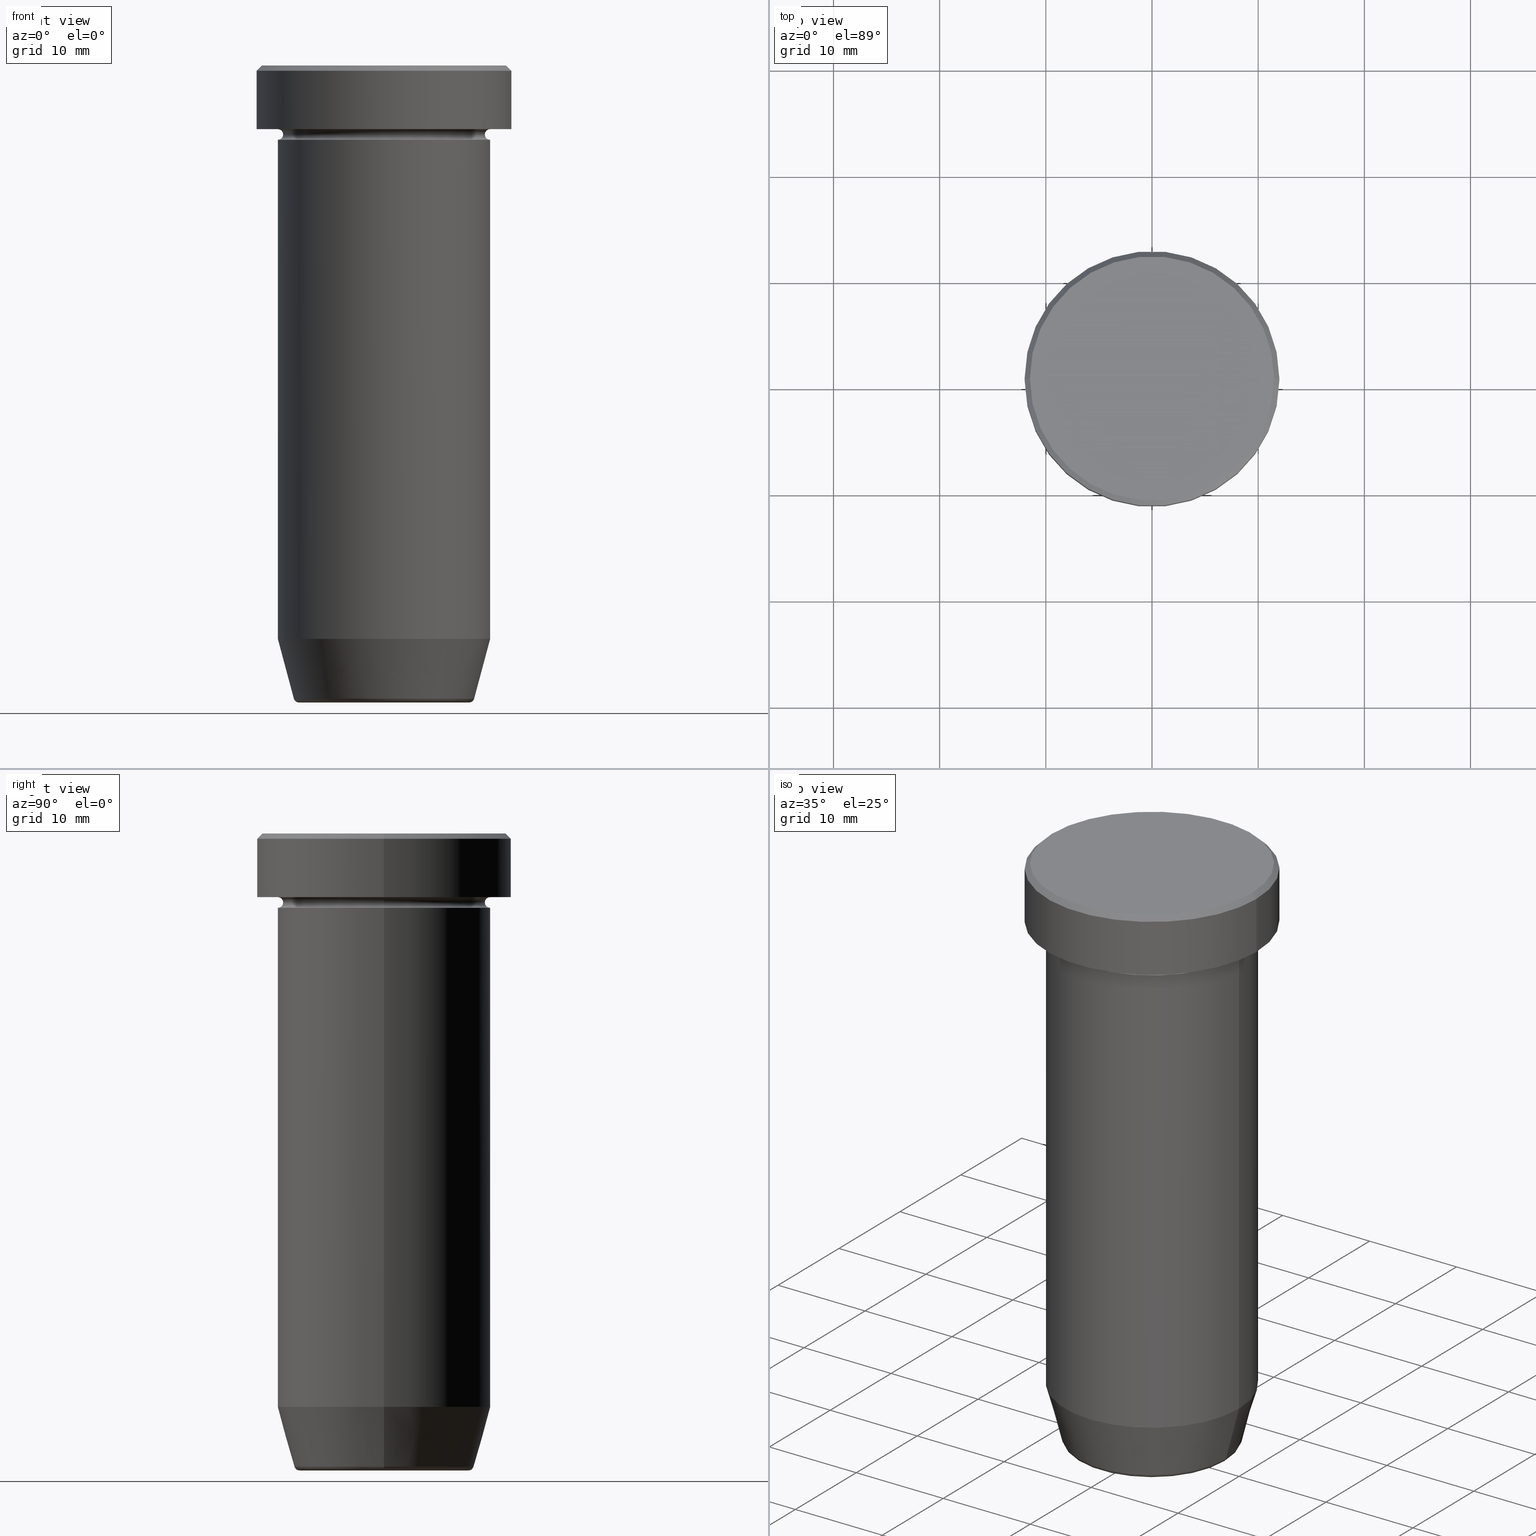
[diagram: canonical four-view strip — front | top / right | iso, engineering-drawing reading convention]
A machine part, canonical four-view strip (front | top / right | iso — engineering-drawing reading convention). The complete STEP part file that produces these views, byte-faithful:
ISO-10303-21;
HEADER;
FILE_DESCRIPTION (( 'STEP AP203' ),
    '1' );
FILE_NAME ('5390.STEP',
    '2024-01-02T22:00:16',
    ( '' ),
    ( '' ),
    'SwSTEP 2.0',
    'SolidWorks 2019',
    '' );
FILE_SCHEMA (( 'CONFIG_CONTROL_DESIGN' ));
ENDSEC;

DATA;
#1 = DIRECTION ( 'NONE',  ( -1.000000000000000000, 0.000000000000000000, 0.000000000000000000 ) ) ;
#2 = ORIENTED_EDGE ( 'NONE', *, *, #143, .F. ) ;
#3 = AXIS2_PLACEMENT_3D ( 'NONE', #459, #583, #133 ) ;
#4 = CLOSED_SHELL ( 'NONE', ( #222, #376, #565, #573, #530, #32, #277, #11 ) ) ;
#5 = DIRECTION ( 'NONE',  ( -1.224646799147353207E-16, 1.000000000000000000, 0.000000000000000000 ) ) ;
#6 = MECHANICAL_CONTEXT ( 'NONE', #35, 'mechanical' ) ;
#7 = CARTESIAN_POINT ( 'NONE',  ( -10.00000000000000000, 1.224646799147353256E-15, 0.000000000000000000 ) ) ;
#8 = ORIENTED_EDGE ( 'NONE', *, *, #243, .T. ) ;
#9 = DIRECTION ( 'NONE',  ( -0.000000000000000000, -0.000000000000000000, 1.000000000000000000 ) ) ;
#10 = EDGE_LOOP ( 'NONE', ( #394, #511, #56, #103 ) ) ;
#11 = ADVANCED_FACE ( 'NONE', ( #245 ), #89, .T. ) ;
#12 = AXIS2_PLACEMENT_3D ( 'NONE', #329, #5, #366 ) ;
#13 = ORIENTED_EDGE ( 'NONE', *, *, #108, .F. ) ;
#14 = CC_DESIGN_PERSON_AND_ORGANIZATION_ASSIGNMENT ( #465, #20, ( #456 ) ) ;
#15 = CIRCLE ( 'NONE', #579, 8.491604264568310967 ) ;
#16 = CIRCLE ( 'NONE', #301, 12.00000000000000000 ) ;
#17 = DIRECTION ( 'NONE',  ( 0.000000000000000000, -1.000000000000000000, 0.000000000000000000 ) ) ;
#18 =( NAMED_UNIT ( * ) PLANE_ANGLE_UNIT ( ) SI_UNIT ( $, .RADIAN. ) );
#19 = FACE_OUTER_BOUND ( 'NONE', #434, .T. ) ;
#20 = PERSON_AND_ORGANIZATION_ROLE ( 'design_supplier' ) ;
#21 = ORIENTED_EDGE ( 'NONE', *, *, #281, .T. ) ;
#22 = VECTOR ( 'NONE', #122, 1000.000000000000000 ) ;
#23 = ORIENTED_EDGE ( 'NONE', *, *, #138, .T. ) ;
#24 = DIRECTION ( 'NONE',  ( -0.000000000000000000, -0.000000000000000000, 1.000000000000000000 ) ) ;
#25 = ORIENTED_EDGE ( 'NONE', *, *, #199, .T. ) ;
#26 = CARTESIAN_POINT ( 'NONE',  ( -9.500000000000000000, 1.194030629168669469E-15, -6.499999999999999112 ) ) ;
#27 = EDGE_LOOP ( 'NONE', ( #332, #39 ) ) ;
#28 = ORIENTED_EDGE ( 'NONE', *, *, #41, .T. ) ;
#29 = VERTEX_POINT ( 'NONE', #214 ) ;
#30 = AXIS2_PLACEMENT_3D ( 'NONE', #542, #306, #589 ) ;
#31 = CONICAL_SURFACE ( 'NONE', #346, 11.49999999999999467, 0.7853981633974447263 ) ;
#32 = ADVANCED_FACE ( 'NONE', ( #166 ), #313, .T. ) ;
#33 = ORIENTED_EDGE ( 'NONE', *, *, #199, .F. ) ;
#34 = PLANE ( 'NONE',  #385 ) ;
#35 = APPLICATION_CONTEXT ( 'configuration controlled 3d designs of mechanical parts and assemblies' ) ;
#36 = CC_DESIGN_APPROVAL ( #435, ( #456 ) ) ;
#37 = ADVANCED_FACE ( 'NONE', ( #121 ), #72, .F. ) ;
#38 = FACE_BOUND ( 'NONE', #218, .T. ) ;
#39 = ORIENTED_EDGE ( 'NONE', *, *, #146, .T. ) ;
#40 = CARTESIAN_POINT ( 'NONE',  ( 0.000000000000000000, 10.00000000000000000, -15.00000000000000000 ) ) ;
#41 = EDGE_CURVE ( 'NONE', #274, #29, #165, .T. ) ;
#42 = CYLINDRICAL_SURFACE ( 'NONE', #117, 12.00000000000000000 ) ;
#43 = CARTESIAN_POINT ( 'NONE',  ( 0.000000000000000000, -3.469446951953614189E-15, -15.00000000000000000 ) ) ;
#44 = CIRCLE ( 'NONE', #217, 12.00000000000000000 ) ;
#45 = AXIS2_PLACEMENT_3D ( 'NONE', #84, #494, #249 ) ;
#46 = ORIENTED_EDGE ( 'NONE', *, *, #228, .T. ) ;
#47 = AXIS2_PLACEMENT_3D ( 'NONE', #49, #128, #453 ) ;
#48 = DIRECTION ( 'NONE',  ( 0.000000000000000000, -1.000000000000000000, 0.000000000000000000 ) ) ;
#49 = CARTESIAN_POINT ( 'NONE',  ( -10.00000000000000000, 1.224646799147353256E-15, -6.499999999999999112 ) ) ;
#50 = ORIENTED_EDGE ( 'NONE', *, *, #300, .F. ) ;
#51 = ORIENTED_EDGE ( 'NONE', *, *, #403, .F. ) ;
#52 = DIRECTION ( 'NONE',  ( -0.000000000000000000, -0.000000000000000000, 1.000000000000000000 ) ) ;
#53 = CARTESIAN_POINT ( 'NONE',  ( -8.008641351423779753, 1.010348648938493172E-15, -60.00000000000000000 ) ) ;
#54 = CARTESIAN_POINT ( 'NONE',  ( 0.000000000000000000, 0.000000000000000000, -6.999999999999999112 ) ) ;
#55 = ORIENTED_EDGE ( 'NONE', *, *, #83, .F. ) ;
#56 = ORIENTED_EDGE ( 'NONE', *, *, #64, .T. ) ;
#57 = DIRECTION ( 'NONE',  ( 1.000000000000000000, 0.000000000000000000, 0.000000000000000000 ) ) ;
#58 = CIRCLE ( 'NONE', #283, 9.999999999999998224 ) ;
#59 = CARTESIAN_POINT ( 'NONE',  ( 10.00000000000000000, 0.000000000000000000, -15.00000000000000000 ) ) ;
#60 = TOROIDAL_SURFACE ( 'NONE', #132, 8.008641351423779753, 0.5000000000000000000 ) ;
#61 = DIRECTION ( 'NONE',  ( 1.000000000000000000, 0.000000000000000000, 0.000000000000000000 ) ) ;
#62 = ORIENTED_EDGE ( 'NONE', *, *, #228, .F. ) ;
#63 = SECURITY_CLASSIFICATION_LEVEL ( 'unclassified' ) ;
#64 = EDGE_CURVE ( 'NONE', #482, #500, #343, .T. ) ;
#65 = DIRECTION ( 'NONE',  ( -0.000000000000000000, -1.000000000000000000, -0.000000000000000000 ) ) ;
#66 = DIRECTION ( 'NONE',  ( -0.000000000000000000, -0.000000000000000000, 1.000000000000000000 ) ) ;
#67 = APPROVAL_ROLE ( '' ) ;
#68 = CC_DESIGN_PERSON_AND_ORGANIZATION_ASSIGNMENT ( #356, #280, ( #162 ) ) ;
#69 = CARTESIAN_POINT ( 'NONE',  ( 0.000000000000000000, 0.000000000000000000, -53.99999999999999289 ) ) ;
#70 = AXIS2_PLACEMENT_3D ( 'NONE', #515, #510, #276 ) ;
#71 = PERSON_AND_ORGANIZATION_ROLE ( 'creator' ) ;
#72 = TOROIDAL_SURFACE ( 'NONE', #3, 10.00000000000000000, 0.5000000000000000000 ) ;
#73 = DIRECTION ( 'NONE',  ( 1.000000000000000000, 0.000000000000000000, 0.000000000000000000 ) ) ;
#74 = CC_DESIGN_APPROVAL ( #547, ( #519 ) ) ;
#75 = DIRECTION ( 'NONE',  ( 0.000000000000000000, 0.000000000000000000, -1.000000000000000000 ) ) ;
#76 = ORIENTED_EDGE ( 'NONE', *, *, #342, .T. ) ;
#77 = CIRCLE ( 'NONE', #156, 10.00000000000000000 ) ;
#78 = FACE_OUTER_BOUND ( 'NONE', #373, .T. ) ;
#79 = EDGE_CURVE ( 'NONE', #134, #29, #194, .T. ) ;
#80 = CC_DESIGN_APPROVAL ( #125, ( #162 ) ) ;
#81 = CARTESIAN_POINT ( 'NONE',  ( 8.392304845413260495, 0.000000000000000000, -60.00000000000000000 ) ) ;
#82 = CARTESIAN_POINT ( 'NONE',  ( 8.491604264568310967, 0.000000000000000000, -59.62940952255125637 ) ) ;
#83 = EDGE_CURVE ( 'NONE', #204, #134, #400, .T. ) ;
#84 = CARTESIAN_POINT ( 'NONE',  ( 0.000000000000000000, 0.000000000000000000, -53.99999999999999289 ) ) ;
#85 = CARTESIAN_POINT ( 'NONE',  ( 0.000000000000000000, 0.000000000000000000, -60.00000000000000000 ) ) ;
#86 = TOROIDAL_SURFACE ( 'NONE', #30, 10.00000000000000000, 0.5000000000000000000 ) ;
#87 = CARTESIAN_POINT ( 'NONE',  ( 0.000000000000000000, 0.000000000000000000, -6.499999999999999112 ) ) ;
#88 = AXIS2_PLACEMENT_3D ( 'NONE', #544, #308, #174 ) ;
#89 = TOROIDAL_SURFACE ( 'NONE', #514, 8.008641351423779753, 0.5000000000000000000 ) ;
#90 = ORIENTED_EDGE ( 'NONE', *, *, #238, .F. ) ;
#91 = ORGANIZATION ( 'NEUR�EN�', 'NEUR�EN�', '' ) ;
#92 = DIRECTION ( 'NONE',  ( 1.000000000000000000, 0.000000000000000000, 0.000000000000000000 ) ) ;
#93 = ORIENTED_EDGE ( 'NONE', *, *, #522, .F. ) ;
#94 = FACE_OUTER_BOUND ( 'NONE', #388, .T. ) ;
#95 = PERSON_AND_ORGANIZATION ( #190, #91 ) ;
#96 = AXIS2_PLACEMENT_3D ( 'NONE', #239, #426, #288 ) ;
#97 = DIRECTION ( 'NONE',  ( 1.000000000000000000, 0.000000000000000000, 0.000000000000000000 ) ) ;
#98 = ORIENTED_EDGE ( 'NONE', *, *, #584, .F. ) ;
#99 = ORIENTED_EDGE ( 'NONE', *, *, #212, .T. ) ;
#100 = DIRECTION ( 'NONE',  ( 1.000000000000000000, 0.000000000000000000, 0.000000000000000000 ) ) ;
#101 = DIRECTION ( 'NONE',  ( 1.000000000000000000, 0.000000000000000000, 0.000000000000000000 ) ) ;
#102 = VERTEX_POINT ( 'NONE', #254 ) ;
#103 = ORIENTED_EDGE ( 'NONE', *, *, #412, .F. ) ;
#104 = EDGE_CURVE ( 'NONE', #289, #560, #15, .T. ) ;
#105 = CIRCLE ( 'NONE', #492, 10.00000000000000000 ) ;
#106 = FACE_OUTER_BOUND ( 'NONE', #595, .T. ) ;
#107 = CALENDAR_DATE ( 2024, 2, 1 ) ;
#108 = EDGE_CURVE ( 'NONE', #274, #278, #395, .T. ) ;
#109 = COORDINATED_UNIVERSAL_TIME_OFFSET ( 1, 0, .AHEAD. ) ;
#110 = EDGE_LOOP ( 'NONE', ( #326, #255, #317, #441 ) ) ;
#111 = APPROVAL_PERSON_ORGANIZATION ( #566, #435, #67 ) ;
#112 = CARTESIAN_POINT ( 'NONE',  ( 0.000000000000000000, 0.000000000000000000, -6.000000000000000000 ) ) ;
#113 = DIRECTION ( 'NONE',  ( -0.000000000000000000, -0.000000000000000000, 1.000000000000000000 ) ) ;
#114 = APPLICATION_CONTEXT ( 'configuration controlled 3d designs of mechanical parts and assemblies' ) ;
#115 = VERTEX_POINT ( 'NONE', #263 ) ;
#116 = ADVANCED_FACE ( 'NONE', ( #38, #398 ), #587, .T. ) ;
#117 = AXIS2_PLACEMENT_3D ( 'NONE', #402, #353, #298 ) ;
#118 = DATE_TIME_ROLE ( 'creation_date' ) ;
#119 = EDGE_LOOP ( 'NONE', ( #282, #233, #559, #303 ) ) ;
#120 = CARTESIAN_POINT ( 'NONE',  ( 0.000000000000000000, 0.000000000000000000, 0.000000000000000000 ) ) ;
#121 = FACE_OUTER_BOUND ( 'NONE', #284, .T. ) ;
#122 = DIRECTION ( 'NONE',  ( -0.000000000000000000, -0.000000000000000000, 1.000000000000000000 ) ) ;
#123 = CIRCLE ( 'NONE', #448, 0.5000000000000004441 ) ;
#124 = ORIENTED_EDGE ( 'NONE', *, *, #403, .T. ) ;
#125 = APPROVAL ( #399, 'NEUR�EN�' ) ;
#126 = CARTESIAN_POINT ( 'NONE',  ( -8.491604264568310967, 1.132284198685156387E-15, -59.62940952255125637 ) ) ;
#127 = DIRECTION ( 'NONE',  ( 1.000000000000000000, 0.000000000000000000, 0.000000000000000000 ) ) ;
#128 = DIRECTION ( 'NONE',  ( 1.224646799147353207E-16, 1.000000000000000000, 0.000000000000000000 ) ) ;
#129 = CIRCLE ( 'NONE', #12, 0.5000000000000004441 ) ;
#130 = EDGE_CURVE ( 'NONE', #338, #204, #533, .T. ) ;
#131 = PERSON_AND_ORGANIZATION_ROLE ( 'design_owner' ) ;
#132 = AXIS2_PLACEMENT_3D ( 'NONE', #562, #113, #154 ) ;
#133 = DIRECTION ( 'NONE',  ( 1.000000000000000000, 0.000000000000000000, 0.000000000000000000 ) ) ;
#134 = VERTEX_POINT ( 'NONE', #171 ) ;
#135 = DIRECTION ( 'NONE',  ( -0.000000000000000000, -0.000000000000000000, 1.000000000000000000 ) ) ;
#136 = CALENDAR_DATE ( 2024, 2, 1 ) ;
#137 = DIRECTION ( 'NONE',  ( -1.000000000000000000, 0.000000000000000000, -0.000000000000000000 ) ) ;
#138 = EDGE_CURVE ( 'NONE', #115, #331, #16, .T. ) ;
#139 = FACE_OUTER_BOUND ( 'NONE', #292, .T. ) ;
#140 = ORIENTED_EDGE ( 'NONE', *, *, #484, .T. ) ;
#141 = AXIS2_PLACEMENT_3D ( 'NONE', #182, #318, #361 ) ;
#142 = DIRECTION ( 'NONE',  ( -0.000000000000000000, -0.000000000000000000, 1.000000000000000000 ) ) ;
#143 = EDGE_CURVE ( 'NONE', #576, #115, #499, .T. ) ;
#144 = DIRECTION ( 'NONE',  ( -0.000000000000000000, -0.000000000000000000, 1.000000000000000000 ) ) ;
#145 = LINE ( 'NONE', #378, #516 ) ;
#146 = EDGE_CURVE ( 'NONE', #180, #508, #351, .T. ) ;
#147 = APPROVAL_STATUS ( 'not_yet_approved' ) ;
#148 = ADVANCED_FACE ( 'NONE', ( #139 ), #42, .T. ) ;
#149 = DIRECTION ( 'NONE',  ( -0.000000000000000000, -0.000000000000000000, 1.000000000000000000 ) ) ;
#150 = CIRCLE ( 'NONE', #70, 8.008641351423779753 ) ;
#151 = AXIS2_PLACEMENT_3D ( 'NONE', #439, #211, #161 ) ;
#152 = ORIENTED_EDGE ( 'NONE', *, *, #484, .F. ) ;
#153 = DIRECTION ( 'NONE',  ( 1.000000000000000000, 0.000000000000000000, 0.000000000000000000 ) ) ;
#154 = DIRECTION ( 'NONE',  ( 1.000000000000000000, 0.000000000000000000, 0.000000000000000000 ) ) ;
#155 = DIRECTION ( 'NONE',  ( 0.000000000000000000, 0.000000000000000000, -1.000000000000000000 ) ) ;
#156 = AXIS2_PLACEMENT_3D ( 'NONE', #232, #420, #327 ) ;
#157 = ORIENTED_EDGE ( 'NONE', *, *, #79, .F. ) ;
#158 = CARTESIAN_POINT ( 'NONE',  ( -10.00000000000000000, 1.224646799147353256E-15, -15.00000000000000000 ) ) ;
#159 = ORIENTED_EDGE ( 'NONE', *, *, #463, .F. ) ;
#160 = ADVANCED_FACE ( 'NONE', ( #167 ), #504, .T. ) ;
#161 = DIRECTION ( 'NONE',  ( 1.000000000000000000, 0.000000000000000000, 0.000000000000000000 ) ) ;
#162 = PRODUCT_DEFINITION ( 'NEZN�M�', '', #456, #582 ) ;
#163 = CC_DESIGN_DATE_AND_TIME_ASSIGNMENT ( #422, #415, ( #519 ) ) ;
#164 = DIRECTION ( 'NONE',  ( 1.000000000000000000, 0.000000000000000000, 0.000000000000000000 ) ) ;
#165 = CIRCLE ( 'NONE', #47, 0.5000000000000004441 ) ;
#166 = FACE_OUTER_BOUND ( 'NONE', #334, .T. ) ;
#167 = FACE_OUTER_BOUND ( 'NONE', #110, .T. ) ;
#168 = CARTESIAN_POINT ( 'NONE',  ( 0.000000000000000000, 0.000000000000000000, -15.00000000000000000 ) ) ;
#169 = APPROVAL_ROLE ( '' ) ;
#170 = AXIS2_PLACEMENT_3D ( 'NONE', #564, #319, #512 ) ;
#171 = CARTESIAN_POINT ( 'NONE',  ( 10.00000000000000000, 0.000000000000000000, -6.999999999999999112 ) ) ;
#172 = FACE_OUTER_BOUND ( 'NONE', #410, .T. ) ;
#173 = APPROVAL_DATE_TIME ( #590, #125 ) ;
#174 = DIRECTION ( 'NONE',  ( 1.000000000000000000, 0.000000000000000000, 0.000000000000000000 ) ) ;
#175 = DIRECTION ( 'NONE',  ( 1.000000000000000000, 0.000000000000000000, 0.000000000000000000 ) ) ;
#176 = EDGE_CURVE ( 'NONE', #102, #224, #285, .T. ) ;
#177 = PERSON_AND_ORGANIZATION ( #190, #91 ) ;
#178 = CARTESIAN_POINT ( 'NONE',  ( 9.999999999999998224, 0.000000000000000000, 0.000000000000000000 ) ) ;
#179 = EDGE_LOOP ( 'NONE', ( #336, #159, #140, #580 ) ) ;
#180 = VERTEX_POINT ( 'NONE', #266 ) ;
#181 = AXIS2_PLACEMENT_3D ( 'NONE', #597, #363, #101 ) ;
#182 = CARTESIAN_POINT ( 'NONE',  ( 0.000000000000000000, 0.000000000000000000, 0.000000000000000000 ) ) ;
#183 = CARTESIAN_POINT ( 'NONE',  ( 11.49999999999999467, 1.408343819019455584E-15, 0.000000000000000000 ) ) ;
#184 = AXIS2_PLACEMENT_3D ( 'NONE', #85, #430, #529 ) ;
#185 = CIRCLE ( 'NONE', #246, 8.491604264568310967 ) ;
#186 = CARTESIAN_POINT ( 'NONE',  ( 0.000000000000000000, 0.000000000000000000, -5.999999999999999112 ) ) ;
#187 = CARTESIAN_POINT ( 'NONE',  ( 10.00000000000000000, 1.224646799147353256E-15, -6.000000000000000000 ) ) ;
#188 = PERSON_AND_ORGANIZATION ( #190, #91 ) ;
#189 = DIRECTION ( 'NONE',  ( 0.000000000000000000, 0.000000000000000000, -1.000000000000000000 ) ) ;
#190 = PERSON ( 'NEUR�EN�', 'NEUR�EN�', 'NEUR�EN�', ('NEUR�EN�'), ('NEUR�EN�'), ('NEUR�EN�') ) ;
#191 = TOROIDAL_SURFACE ( 'NONE', #202, 10.00000000000000000, 0.5000000000000000000 ) ;
#192 = ORIENTED_EDGE ( 'NONE', *, *, #455, .F. ) ;
#193 = DIRECTION ( 'NONE',  ( 1.000000000000000000, 0.000000000000000000, 0.000000000000000000 ) ) ;
#194 = CIRCLE ( 'NONE', #264, 10.00000000000000000 ) ;
#195 = DIRECTION ( 'NONE',  ( -0.7071067811865451302, 0.000000000000000000, -0.7071067811865500152 ) ) ;
#196 = PLANE ( 'NONE',  #181 ) ;
#197 = LOCAL_TIME ( 23, 0, 16.00000000000000000, #325 ) ;
#198 = LOCAL_TIME ( 23, 0, 16.00000000000000000, #526 ) ;
#199 = EDGE_CURVE ( 'NONE', #560, #289, #185, .T. ) ;
#200 = PERSON_AND_ORGANIZATION ( #190, #91 ) ;
#201 = ORIENTED_EDGE ( 'NONE', *, *, #369, .T. ) ;
#202 = AXIS2_PLACEMENT_3D ( 'NONE', #457, #370, #554 ) ;
#203 = EDGE_CURVE ( 'NONE', #180, #115, #230, .T. ) ;
#204 = VERTEX_POINT ( 'NONE', #59 ) ;
#205 = CIRCLE ( 'NONE', #170, 0.5000000000000004441 ) ;
#206 = EDGE_LOOP ( 'NONE', ( #368, #491, #50, #531 ) ) ;
#207 = EDGE_CURVE ( 'NONE', #338, #29, #413, .T. ) ;
#208 = DIRECTION ( 'NONE',  ( 1.000000000000000000, 0.000000000000000000, 0.000000000000000000 ) ) ;
#209 = AXIS2_PLACEMENT_3D ( 'NONE', #120, #380, #563 ) ;
#210 = ORIENTED_EDGE ( 'NONE', *, *, #451, .F. ) ;
#211 = DIRECTION ( 'NONE',  ( 0.000000000000000000, 0.000000000000000000, -1.000000000000000000 ) ) ;
#212 = EDGE_CURVE ( 'NONE', #274, #417, #433, .T. ) ;
#213 = AXIS2_PLACEMENT_3D ( 'NONE', #226, #357, #137 ) ;
#214 = CARTESIAN_POINT ( 'NONE',  ( -10.00000000000000000, 1.224646799147353256E-15, -6.999999999999999112 ) ) ;
#215 = DIRECTION ( 'NONE',  ( -0.000000000000000000, -0.000000000000000000, 1.000000000000000000 ) ) ;
#216 = ADVANCED_FACE ( 'NONE', ( #557 ), #335, .F. ) ;
#217 = AXIS2_PLACEMENT_3D ( 'NONE', #248, #387, #568 ) ;
#218 = EDGE_LOOP ( 'NONE', ( #201, #293 ) ) ;
#219 = CARTESIAN_POINT ( 'NONE',  ( 10.00000000000000000, 0.000000000000000000, -6.499999999999999112 ) ) ;
#220 =( NAMED_UNIT ( * ) SI_UNIT ( $, .STERADIAN. ) SOLID_ANGLE_UNIT ( ) );
#221 = CARTESIAN_POINT ( 'NONE',  ( 0.000000000000000000, 0.000000000000000000, 0.000000000000000000 ) ) ;
#222 = ADVANCED_FACE ( 'NONE', ( #352 ), #60, .T. ) ;
#223 = DIRECTION ( 'NONE',  ( -0.000000000000000000, -0.000000000000000000, 1.000000000000000000 ) ) ;
#224 = VERTEX_POINT ( 'NONE', #53 ) ;
#225 = CARTESIAN_POINT ( 'NONE',  ( 0.000000000000000000, 0.000000000000000000, -6.499999999999999112 ) ) ;
#226 = CARTESIAN_POINT ( 'NONE',  ( 0.000000000000000000, 12.00000000000000000, -6.000000000000000000 ) ) ;
#227 = VECTOR ( 'NONE', #408, 1000.000000000000000 ) ;
#228 = EDGE_CURVE ( 'NONE', #224, #560, #205, .T. ) ;
#229 = VERTEX_POINT ( 'NONE', #458 ) ;
#230 = LINE ( 'NONE', #183, #527 ) ;
#231 = EDGE_LOOP ( 'NONE', ( #390, #594 ) ) ;
#232 = CARTESIAN_POINT ( 'NONE',  ( 0.000000000000000000, 0.000000000000000000, -15.00000000000000000 ) ) ;
#233 = ORIENTED_EDGE ( 'NONE', *, *, #238, .T. ) ;
#234 = EDGE_CURVE ( 'NONE', #229, #331, #145, .T. ) ;
#235 = DIRECTION ( 'NONE',  ( -0.000000000000000000, -0.000000000000000000, 1.000000000000000000 ) ) ;
#236 = CIRCLE ( 'NONE', #359, 12.00000000000000000 ) ;
#237 = VECTOR ( 'NONE', #258, 1000.000000000000000 ) ;
#238 = EDGE_CURVE ( 'NONE', #278, #383, #129, .T. ) ;
#239 = CARTESIAN_POINT ( 'NONE',  ( 0.000000000000000000, 0.000000000000000000, -15.00000000000000000 ) ) ;
#240 = EDGE_CURVE ( 'NONE', #224, #102, #150, .T. ) ;
#241 = DIRECTION ( 'NONE',  ( -0.000000000000000000, -0.000000000000000000, 1.000000000000000000 ) ) ;
#242 = CYLINDRICAL_SURFACE ( 'NONE', #340, 10.00000000000000000 ) ;
#243 = EDGE_CURVE ( 'NONE', #560, #536, #469, .T. ) ;
#244 = CIRCLE ( 'NONE', #45, 9.999999999999998224 ) ;
#245 = FACE_OUTER_BOUND ( 'NONE', #360, .T. ) ;
#246 = AXIS2_PLACEMENT_3D ( 'NONE', #475, #9, #1 ) ;
#247 = ORIENTED_EDGE ( 'NONE', *, *, #143, .T. ) ;
#248 = CARTESIAN_POINT ( 'NONE',  ( 0.000000000000000000, 0.000000000000000000, -5.999999999999999112 ) ) ;
#249 = DIRECTION ( 'NONE',  ( 1.000000000000000000, 0.000000000000000000, 0.000000000000000000 ) ) ;
#250 = CARTESIAN_POINT ( 'NONE',  ( 0.000000000000000000, 0.000000000000000000, -6.000000000000000000 ) ) ;
#251 = AXIS2_PLACEMENT_3D ( 'NONE', #432, #155, #525 ) ;
#252 = ORIENTED_EDGE ( 'NONE', *, *, #240, .T. ) ;
#253 = AXIS2_PLACEMENT_3D ( 'NONE', #416, #65, #189 ) ;
#254 = CARTESIAN_POINT ( 'NONE',  ( 8.008641351423779753, 0.000000000000000000, -60.00000000000000000 ) ) ;
#255 = ORIENTED_EDGE ( 'NONE', *, *, #130, .T. ) ;
#256 = ADVANCED_FACE ( 'NONE', ( #460 ), #196, .T. ) ;
#257 = DIRECTION ( 'NONE',  ( 0.000000000000000000, 0.000000000000000000, 1.000000000000000000 ) ) ;
#258 = DIRECTION ( 'NONE',  ( -0.000000000000000000, -0.000000000000000000, 1.000000000000000000 ) ) ;
#259 = ORIENTED_EDGE ( 'NONE', *, *, #598, .F. ) ;
#260 = DIRECTION ( 'NONE',  ( -1.000000000000000000, 0.000000000000000000, -0.000000000000000000 ) ) ;
#261 = DIRECTION ( 'NONE',  ( 0.000000000000000000, 0.000000000000000000, -1.000000000000000000 ) ) ;
#262 = EDGE_CURVE ( 'NONE', #536, #294, #270, .T. ) ;
#263 = CARTESIAN_POINT ( 'NONE',  ( 12.00000000000000000, 0.000000000000000000, -0.5000000000000091038 ) ) ;
#264 = AXIS2_PLACEMENT_3D ( 'NONE', #54, #302, #100 ) ;
#265 = APPLICATION_PROTOCOL_DEFINITION ( 'international standard', 'config_control_design', 1994, #114 ) ;
#266 = CARTESIAN_POINT ( 'NONE',  ( 11.49999999999999467, 1.438959988998139766E-15, 0.000000000000000000 ) ) ;
#267 = ORIENTED_EDGE ( 'NONE', *, *, #269, .T. ) ;
#268 = DIRECTION ( 'NONE',  ( 1.000000000000000000, 0.000000000000000000, 0.000000000000000000 ) ) ;
#269 = EDGE_CURVE ( 'NONE', #29, #134, #461, .T. ) ;
#270 = LINE ( 'NONE', #552, #22 ) ;
#271 = ORIENTED_EDGE ( 'NONE', *, *, #392, .T. ) ;
#272 = AXIS2_PLACEMENT_3D ( 'NONE', #299, #135, #164 ) ;
#273 = PERSON_AND_ORGANIZATION ( #190, #91 ) ;
#274 = VERTEX_POINT ( 'NONE', #26 ) ;
#275 = LOCAL_TIME ( 23, 0, 16.00000000000000000, #586 ) ;
#276 = DIRECTION ( 'NONE',  ( 1.000000000000000000, 0.000000000000000000, 0.000000000000000000 ) ) ;
#277 = ADVANCED_FACE ( 'NONE', ( #487 ), #483, .F. ) ;
#278 = VERTEX_POINT ( 'NONE', #290 ) ;
#279 = CARTESIAN_POINT ( 'NONE',  ( -8.392304845413260495, 1.027760926640417114E-15, -60.00000000000000000 ) ) ;
#280 = PERSON_AND_ORGANIZATION_ROLE ( 'creator' ) ;
#281 = EDGE_CURVE ( 'NONE', #229, #576, #44, .T. ) ;
#282 = ORIENTED_EDGE ( 'NONE', *, *, #108, .T. ) ;
#283 = AXIS2_PLACEMENT_3D ( 'NONE', #69, #52, #406 ) ;
#284 = EDGE_LOOP ( 'NONE', ( #419, #192, #76, #553 ) ) ;
#285 = CIRCLE ( 'NONE', #442, 8.008641351423779753 ) ;
#286 = CALENDAR_DATE ( 2024, 2, 1 ) ;
#287 = ORIENTED_EDGE ( 'NONE', *, *, #104, .F. ) ;
#288 = DIRECTION ( 'NONE',  ( 1.000000000000000000, 0.000000000000000000, 0.000000000000000000 ) ) ;
#289 = VERTEX_POINT ( 'NONE', #82 ) ;
#290 = CARTESIAN_POINT ( 'NONE',  ( 9.500000000000000000, 0.000000000000000000, -6.499999999999999112 ) ) ;
#291 = AXIS2_PLACEMENT_3D ( 'NONE', #225, #235, #505 ) ;
#292 = EDGE_LOOP ( 'NONE', ( #271, #524, #575, #2 ) ) ;
#293 = ORIENTED_EDGE ( 'NONE', *, *, #418, .T. ) ;
#294 = VERTEX_POINT ( 'NONE', #158 ) ;
#295 = ORIENTED_EDGE ( 'NONE', *, *, #481, .F. ) ;
#296 = ADVANCED_FACE ( 'NONE', ( #78 ), #242, .T. ) ;
#297 = CIRCLE ( 'NONE', #141, 11.49999999999999467 ) ;
#298 = DIRECTION ( 'NONE',  ( 1.000000000000000000, 0.000000000000000000, 0.000000000000000000 ) ) ;
#299 = CARTESIAN_POINT ( 'NONE',  ( 0.000000000000000000, 0.000000000000000000, 0.000000000000000000 ) ) ;
#300 = EDGE_CURVE ( 'NONE', #500, #294, #322, .T. ) ;
#301 = AXIS2_PLACEMENT_3D ( 'NONE', #581, #404, #92 ) ;
#302 = DIRECTION ( 'NONE',  ( -0.000000000000000000, -0.000000000000000000, 1.000000000000000000 ) ) ;
#303 = ORIENTED_EDGE ( 'NONE', *, *, #212, .F. ) ;
#304 = LOCAL_TIME ( 23, 0, 16.00000000000000000, #379 ) ;
#305 = DIRECTION ( 'NONE',  ( 0.000000000000000000, 0.000000000000000000, -1.000000000000000000 ) ) ;
#306 = DIRECTION ( 'NONE',  ( 0.000000000000000000, 0.000000000000000000, -1.000000000000000000 ) ) ;
#307 = ADVANCED_FACE ( 'NONE', ( #19 ), #555, .T. ) ;
#308 = DIRECTION ( 'NONE',  ( -0.000000000000000000, -0.000000000000000000, 1.000000000000000000 ) ) ;
#309 = DIRECTION ( 'NONE',  ( 0.000000000000000000, 0.000000000000000000, -1.000000000000000000 ) ) ;
#310 = DIRECTION ( 'NONE',  ( 0.000000000000000000, 0.000000000000000000, -1.000000000000000000 ) ) ;
#311 = VECTOR ( 'NONE', #425, 1000.000000000000000 ) ;
#312 =( GEOMETRIC_REPRESENTATION_CONTEXT ( 3 ) GLOBAL_UNCERTAINTY_ASSIGNED_CONTEXT ( ( #355 ) ) GLOBAL_UNIT_ASSIGNED_CONTEXT ( ( #393, #18, #220 ) ) REPRESENTATION_CONTEXT ( 'NONE', 'WORKASPACE' ) );
#313 = CONICAL_SURFACE ( 'NONE', #184, 8.392304845413260495, 0.2617993877991495744 ) ;
#314 = DIRECTION ( 'NONE',  ( 1.000000000000000000, 0.000000000000000000, 0.000000000000000000 ) ) ;
#315 = AXIS2_PLACEMENT_3D ( 'NONE', #221, #358, #268 ) ;
#316 = CARTESIAN_POINT ( 'NONE',  ( 0.000000000000000000, 0.000000000000000000, -59.62940952255125637 ) ) ;
#317 = ORIENTED_EDGE ( 'NONE', *, *, #83, .T. ) ;
#318 = DIRECTION ( 'NONE',  ( -0.000000000000000000, -0.000000000000000000, 1.000000000000000000 ) ) ;
#319 = DIRECTION ( 'NONE',  ( 1.224646799147353207E-16, 1.000000000000000000, 0.000000000000000000 ) ) ;
#320 = DIRECTION ( 'NONE',  ( 0.7071067811865451302, 8.659560562354903276E-17, -0.7071067811865500152 ) ) ;
#321 = ORIENTED_EDGE ( 'NONE', *, *, #203, .T. ) ;
#322 = CIRCLE ( 'NONE', #96, 10.00000000000000000 ) ;
#323 = FACE_OUTER_BOUND ( 'NONE', #119, .T. ) ;
#324 = CLOSED_SHELL ( 'NONE', ( #307, #389, #216, #296, #148, #561, #256, #407, #116, #160, #37, #348, #578 ) ) ;
#325 = COORDINATED_UNIVERSAL_TIME_OFFSET ( 1, 0, .AHEAD. ) ;
#326 = ORIENTED_EDGE ( 'NONE', *, *, #207, .F. ) ;
#327 = DIRECTION ( 'NONE',  ( 1.000000000000000000, 0.000000000000000000, 0.000000000000000000 ) ) ;
#328 = DATE_AND_TIME ( #107, #488 ) ;
#329 = CARTESIAN_POINT ( 'NONE',  ( 10.00000000000000000, 1.224646799147353256E-15, -6.500000000000000888 ) ) ;
#330 = CC_DESIGN_PERSON_AND_ORGANIZATION_ASSIGNMENT ( #273, #71, ( #456 ) ) ;
#331 = VERTEX_POINT ( 'NONE', #574 ) ;
#332 = ORIENTED_EDGE ( 'NONE', *, *, #463, .T. ) ;
#333 = CARTESIAN_POINT ( 'NONE',  ( -11.49999999999999467, 0.000000000000000000, 0.000000000000000000 ) ) ;
#334 = EDGE_LOOP ( 'NONE', ( #424, #25, #489, #210 ) ) ;
#335 = TOROIDAL_SURFACE ( 'NONE', #411, 10.00000000000000000, 0.5000000000000000000 ) ;
#336 = ORIENTED_EDGE ( 'NONE', *, *, #203, .F. ) ;
#337 = CARTESIAN_POINT ( 'NONE',  ( -10.00000000000000000, 1.224646799147353256E-15, -15.00000000000000000 ) ) ;
#338 = VERTEX_POINT ( 'NONE', #337 ) ;
#339 = CARTESIAN_POINT ( 'NONE',  ( -11.49999999999999467, 0.000000000000000000, 0.000000000000000000 ) ) ;
#340 = AXIS2_PLACEMENT_3D ( 'NONE', #437, #577, #520 ) ;
#341 = EDGE_LOOP ( 'NONE', ( #513, #46, #287, #295 ) ) ;
#342 = EDGE_CURVE ( 'NONE', #278, #134, #585, .T. ) ;
#343 = LINE ( 'NONE', #178, #452 ) ;
#344 = CYLINDRICAL_SURFACE ( 'NONE', #272, 9.999999999999998224 ) ;
#345 = CIRCLE ( 'NONE', #423, 10.00000000000000000 ) ;
#346 = AXIS2_PLACEMENT_3D ( 'NONE', #354, #309, #391 ) ;
#347 = DIRECTION ( 'NONE',  ( -0.000000000000000000, -0.000000000000000000, 1.000000000000000000 ) ) ;
#348 = ADVANCED_FACE ( 'NONE', ( #495 ), #86, .F. ) ;
#349 = FACE_OUTER_BOUND ( 'NONE', #485, .T. ) ;
#350 = DIRECTION ( 'NONE',  ( -1.000000000000000000, 0.000000000000000000, 0.000000000000000000 ) ) ;
#351 = CIRCLE ( 'NONE', #315, 11.49999999999999467 ) ;
#352 = FACE_OUTER_BOUND ( 'NONE', #341, .T. ) ;
#353 = DIRECTION ( 'NONE',  ( -0.000000000000000000, -0.000000000000000000, 1.000000000000000000 ) ) ;
#354 = CARTESIAN_POINT ( 'NONE',  ( 0.000000000000000000, 0.000000000000000000, 0.000000000000000000 ) ) ;
#355 = UNCERTAINTY_MEASURE_WITH_UNIT (LENGTH_MEASURE( 1.000000000000000082E-05 ), #393, 'distance_accuracy_value', 'NONE');
#356 = PERSON_AND_ORGANIZATION ( #190, #91 ) ;
#357 = DIRECTION ( 'NONE',  ( 0.000000000000000000, 0.000000000000000000, -1.000000000000000000 ) ) ;
#358 = DIRECTION ( 'NONE',  ( -0.000000000000000000, -0.000000000000000000, 1.000000000000000000 ) ) ;
#359 = AXIS2_PLACEMENT_3D ( 'NONE', #186, #365, #175 ) ;
#360 = EDGE_LOOP ( 'NONE', ( #62, #375, #567, #33 ) ) ;
#361 = DIRECTION ( 'NONE',  ( 1.000000000000000000, 0.000000000000000000, 0.000000000000000000 ) ) ;
#362 = ORIENTED_EDGE ( 'NONE', *, *, #104, .T. ) ;
#363 = DIRECTION ( 'NONE',  ( 0.000000000000000000, -0.000000000000000000, 1.000000000000000000 ) ) ;
#364 = VECTOR ( 'NONE', #449, 1000.000000000000000 ) ;
#365 = DIRECTION ( 'NONE',  ( -0.000000000000000000, -0.000000000000000000, 1.000000000000000000 ) ) ;
#366 = DIRECTION ( 'NONE',  ( -1.000000000000000000, -1.224646799147353454E-16, 0.000000000000000000 ) ) ;
#367 = CALENDAR_DATE ( 2024, 2, 1 ) ;
#368 = ORIENTED_EDGE ( 'NONE', *, *, #584, .T. ) ;
#369 = EDGE_CURVE ( 'NONE', #417, #383, #345, .T. ) ;
#370 = DIRECTION ( 'NONE',  ( 0.000000000000000000, 0.000000000000000000, -1.000000000000000000 ) ) ;
#371 = DIRECTION ( 'NONE',  ( -0.000000000000000000, -0.000000000000000000, 1.000000000000000000 ) ) ;
#372 = APPROVAL_STATUS ( 'not_yet_approved' ) ;
#373 = EDGE_LOOP ( 'NONE', ( #124, #386, #157, #55 ) ) ;
#374 = AXIS2_PLACEMENT_3D ( 'NONE', #219, #48, #261 ) ;
#375 = ORIENTED_EDGE ( 'NONE', *, *, #176, .F. ) ;
#376 = ADVANCED_FACE ( 'NONE', ( #172 ), #596, .T. ) ;
#377 = ORIENTED_EDGE ( 'NONE', *, *, #300, .T. ) ;
#378 = CARTESIAN_POINT ( 'NONE',  ( -12.00000000000000000, 1.469576158976823947E-15, 0.000000000000000000 ) ) ;
#379 = COORDINATED_UNIVERSAL_TIME_OFFSET ( 1, 0, .AHEAD. ) ;
#380 = DIRECTION ( 'NONE',  ( -0.000000000000000000, -0.000000000000000000, 1.000000000000000000 ) ) ;
#381 = ORIENTED_EDGE ( 'NONE', *, *, #176, .T. ) ;
#382 = PERSON_AND_ORGANIZATION_ROLE ( 'classification_officer' ) ;
#383 = VERTEX_POINT ( 'NONE', #187 ) ;
#384 = CARTESIAN_POINT ( 'NONE',  ( 9.999999999999998224, 0.000000000000000000, -53.99999999999999289 ) ) ;
#385 = AXIS2_PLACEMENT_3D ( 'NONE', #40, #490, #501 ) ;
#386 = ORIENTED_EDGE ( 'NONE', *, *, #207, .T. ) ;
#387 = DIRECTION ( 'NONE',  ( -0.000000000000000000, -0.000000000000000000, 1.000000000000000000 ) ) ;
#388 = EDGE_LOOP ( 'NONE', ( #51, #445 ) ) ;
#389 = ADVANCED_FACE ( 'NONE', ( #323 ), #191, .F. ) ;
#390 = ORIENTED_EDGE ( 'NONE', *, *, #392, .F. ) ;
#391 = DIRECTION ( 'NONE',  ( -1.000000000000000000, 0.000000000000000000, 0.000000000000000000 ) ) ;
#392 = EDGE_CURVE ( 'NONE', #576, #229, #236, .T. ) ;
#393 =( LENGTH_UNIT ( ) NAMED_UNIT ( * ) SI_UNIT ( .MILLI., .METRE. ) );
#394 = ORIENTED_EDGE ( 'NONE', *, *, #262, .F. ) ;
#395 = CIRCLE ( 'NONE', #474, 9.500000000000000000 ) ;
#396 = ORIENTED_EDGE ( 'NONE', *, *, #342, .F. ) ;
#397 = FACE_OUTER_BOUND ( 'NONE', #206, .T. ) ;
#398 = FACE_OUTER_BOUND ( 'NONE', #231, .T. ) ;
#399 = APPROVAL_STATUS ( 'not_yet_approved' ) ;
#400 = LINE ( 'NONE', #496, #237 ) ;
#401 = FACE_OUTER_BOUND ( 'NONE', #179, .T. ) ;
#402 = CARTESIAN_POINT ( 'NONE',  ( 0.000000000000000000, 0.000000000000000000, 0.000000000000000000 ) ) ;
#403 = EDGE_CURVE ( 'NONE', #204, #338, #105, .T. ) ;
#404 = DIRECTION ( 'NONE',  ( 0.000000000000000000, 0.000000000000000000, -1.000000000000000000 ) ) ;
#405 = ORIENTED_EDGE ( 'NONE', *, *, #234, .F. ) ;
#406 = DIRECTION ( 'NONE',  ( 1.000000000000000000, 0.000000000000000000, 0.000000000000000000 ) ) ;
#407 = ADVANCED_FACE ( 'NONE', ( #106 ), #592, .T. ) ;
#408 = DIRECTION ( 'NONE',  ( -0.2588190451025209060, 3.169619151431766790E-17, 0.9659258262890682012 ) ) ;
#409 = AXIS2_PLACEMENT_3D ( 'NONE', #468, #66, #153 ) ;
#410 = EDGE_LOOP ( 'NONE', ( #362, #8, #98, #93 ) ) ;
#411 = AXIS2_PLACEMENT_3D ( 'NONE', #87, #444, #193 ) ;
#412 = EDGE_CURVE ( 'NONE', #294, #500, #77, .T. ) ;
#413 = LINE ( 'NONE', #7, #464 ) ;
#414 = AXIS2_PLACEMENT_3D ( 'NONE', #498, #257, #314 ) ;
#415 = DATE_TIME_ROLE ( 'classification_date' ) ;
#416 = CARTESIAN_POINT ( 'NONE',  ( -10.00000000000000000, 0.000000000000000000, -6.500000000000000888 ) ) ;
#417 = VERTEX_POINT ( 'NONE', #518 ) ;
#418 = EDGE_CURVE ( 'NONE', #383, #417, #431, .T. ) ;
#419 = ORIENTED_EDGE ( 'NONE', *, *, #41, .F. ) ;
#420 = DIRECTION ( 'NONE',  ( -0.000000000000000000, -0.000000000000000000, 1.000000000000000000 ) ) ;
#421 = APPROVAL_DATE_TIME ( #328, #547 ) ;
#422 = DATE_AND_TIME ( #286, #198 ) ;
#423 = AXIS2_PLACEMENT_3D ( 'NONE', #250, #493, #350 ) ;
#424 = ORIENTED_EDGE ( 'NONE', *, *, #243, .F. ) ;
#425 = DIRECTION ( 'NONE',  ( 0.2588190451025209060, 0.000000000000000000, 0.9659258262890682012 ) ) ;
#426 = DIRECTION ( 'NONE',  ( -0.000000000000000000, -0.000000000000000000, 1.000000000000000000 ) ) ;
#427 = DATE_AND_TIME ( #521, #197 ) ;
#428 = DIRECTION ( 'NONE',  ( 0.000000000000000000, -0.000000000000000000, 1.000000000000000000 ) ) ;
#429 = DATE_AND_TIME ( #367, #304 ) ;
#430 = DIRECTION ( 'NONE',  ( -0.000000000000000000, -0.000000000000000000, 1.000000000000000000 ) ) ;
#431 = CIRCLE ( 'NONE', #558, 10.00000000000000000 ) ;
#432 = CARTESIAN_POINT ( 'NONE',  ( 0.000000000000000000, 0.000000000000000000, 0.000000000000000000 ) ) ;
#433 = CIRCLE ( 'NONE', #253, 0.5000000000000004441 ) ;
#434 = EDGE_LOOP ( 'NONE', ( #438, #321, #259, #152 ) ) ;
#435 = APPROVAL ( #147, 'NEUR�EN�' ) ;
#436 = PRODUCT_RELATED_PRODUCT_CATEGORY ( 'detail', '', ( #538 ) ) ;
#437 = CARTESIAN_POINT ( 'NONE',  ( 0.000000000000000000, 0.000000000000000000, 0.000000000000000000 ) ) ;
#438 = ORIENTED_EDGE ( 'NONE', *, *, #146, .F. ) ;
#439 = CARTESIAN_POINT ( 'NONE',  ( 0.000000000000000000, 0.000000000000000000, -0.5000000000000091038 ) ) ;
#440 = AXIS2_PLACEMENT_3D ( 'NONE', #571, #24, #73 ) ;
#441 = ORIENTED_EDGE ( 'NONE', *, *, #269, .F. ) ;
#442 = AXIS2_PLACEMENT_3D ( 'NONE', #548, #310, #97 ) ;
#443 = CARTESIAN_POINT ( 'NONE',  ( -9.999999999999998224, 1.224646799147353059E-15, -53.99999999999999289 ) ) ;
#444 = DIRECTION ( 'NONE',  ( -0.000000000000000000, -0.000000000000000000, 1.000000000000000000 ) ) ;
#445 = ORIENTED_EDGE ( 'NONE', *, *, #130, .F. ) ;
#446 = PRODUCT_DEFINITION_SHAPE ( 'NONE', 'NONE',  #162 ) ;
#447 = CARTESIAN_POINT ( 'NONE',  ( 12.00000000000000000, 0.000000000000000000, -5.999999999999999112 ) ) ;
#448 = AXIS2_PLACEMENT_3D ( 'NONE', #509, #17, #75 ) ;
#449 = DIRECTION ( 'NONE',  ( -0.000000000000000000, -0.000000000000000000, 1.000000000000000000 ) ) ;
#450 = ORIENTED_EDGE ( 'NONE', *, *, #455, .T. ) ;
#451 = EDGE_CURVE ( 'NONE', #536, #482, #58, .T. ) ;
#452 = VECTOR ( 'NONE', #215, 1000.000000000000000 ) ;
#453 = DIRECTION ( 'NONE',  ( -1.000000000000000000, 1.224646799147353454E-16, 0.000000000000000000 ) ) ;
#454 = ORIENTED_EDGE ( 'NONE', *, *, #412, .T. ) ;
#455 = EDGE_CURVE ( 'NONE', #278, #274, #569, .T. ) ;
#456 = PRODUCT_DEFINITION_FORMATION_WITH_SPECIFIED_SOURCE ( 'LIBOVOLN�', '', #538, .NOT_KNOWN. ) ;
#457 = CARTESIAN_POINT ( 'NONE',  ( 0.000000000000000000, 0.000000000000000000, -6.500000000000000888 ) ) ;
#458 = CARTESIAN_POINT ( 'NONE',  ( -12.00000000000000000, 1.469576158976823947E-15, -5.999999999999999112 ) ) ;
#459 = CARTESIAN_POINT ( 'NONE',  ( 0.000000000000000000, 0.000000000000000000, -6.499999999999999112 ) ) ;
#460 = FACE_OUTER_BOUND ( 'NONE', #27, .T. ) ;
#461 = CIRCLE ( 'NONE', #440, 10.00000000000000000 ) ;
#462 = ORIENTED_EDGE ( 'NONE', *, *, #418, .F. ) ;
#463 = EDGE_CURVE ( 'NONE', #508, #180, #297, .T. ) ;
#464 = VECTOR ( 'NONE', #466, 1000.000000000000000 ) ;
#465 = PERSON_AND_ORGANIZATION ( #190, #91 ) ;
#466 = DIRECTION ( 'NONE',  ( -0.000000000000000000, -0.000000000000000000, 1.000000000000000000 ) ) ;
#467 = APPROVAL_PERSON_ORGANIZATION ( #177, #125, #169 ) ;
#468 = CARTESIAN_POINT ( 'NONE',  ( 0.000000000000000000, 0.000000000000000000, 0.000000000000000000 ) ) ;
#469 = LINE ( 'NONE', #279, #227 ) ;
#470 = DIRECTION ( 'NONE',  ( -1.000000000000000000, 0.000000000000000000, 0.000000000000000000 ) ) ;
#471 = APPROVAL_DATE_TIME ( #427, #435 ) ;
#472 = AXIS2_PLACEMENT_3D ( 'NONE', #545, #502, #61 ) ;
#473 = ADVANCED_BREP_SHAPE_REPRESENTATION ( '5390', ( #543, #550, #414 ), #312 ) ;
#474 = AXIS2_PLACEMENT_3D ( 'NONE', #535, #223, #507 ) ;
#475 = CARTESIAN_POINT ( 'NONE',  ( 0.000000000000000000, 0.000000000000000000, -59.62940952255125637 ) ) ;
#476 = FACE_OUTER_BOUND ( 'NONE', #10, .T. ) ;
#477 = SHAPE_DEFINITION_REPRESENTATION ( #446, #473 ) ;
#478 = CARTESIAN_POINT ( 'NONE',  ( 0.000000000000000000, 1.224646799147352073E-15, -60.00000000000000000 ) ) ;
#479 = CC_DESIGN_SECURITY_CLASSIFICATION ( #519, ( #456 ) ) ;
#480 = EDGE_LOOP ( 'NONE', ( #13, #28, #267, #396 ) ) ;
#481 = EDGE_CURVE ( 'NONE', #102, #289, #123, .T. ) ;
#482 = VERTEX_POINT ( 'NONE', #384 ) ;
#483 = PLANE ( 'NONE',  #523 ) ;
#484 = EDGE_CURVE ( 'NONE', #508, #331, #570, .T. ) ;
#485 = EDGE_LOOP ( 'NONE', ( #377, #454 ) ) ;
#486 = LINE ( 'NONE', #81, #311 ) ;
#487 = FACE_OUTER_BOUND ( 'NONE', #572, .T. ) ;
#488 = LOCAL_TIME ( 23, 0, 16.00000000000000000, #109 ) ;
#489 = ORIENTED_EDGE ( 'NONE', *, *, #522, .T. ) ;
#490 = DIRECTION ( 'NONE',  ( 0.000000000000000000, 0.000000000000000000, -1.000000000000000000 ) ) ;
#491 = ORIENTED_EDGE ( 'NONE', *, *, #262, .T. ) ;
#492 = AXIS2_PLACEMENT_3D ( 'NONE', #551, #149, #57 ) ;
#493 = DIRECTION ( 'NONE',  ( -0.000000000000000000, -0.000000000000000000, 1.000000000000000000 ) ) ;
#494 = DIRECTION ( 'NONE',  ( -0.000000000000000000, -0.000000000000000000, 1.000000000000000000 ) ) ;
#495 = FACE_OUTER_BOUND ( 'NONE', #517, .T. ) ;
#496 = CARTESIAN_POINT ( 'NONE',  ( 10.00000000000000000, 0.000000000000000000, 0.000000000000000000 ) ) ;
#497 = APPROVAL_PERSON_ORGANIZATION ( #188, #547, #556 ) ;
#498 = CARTESIAN_POINT ( 'NONE',  ( 0.000000000000000000, 0.000000000000000000, 0.000000000000000000 ) ) ;
#499 = LINE ( 'NONE', #593, #364 ) ;
#500 = VERTEX_POINT ( 'NONE', #532 ) ;
#501 = DIRECTION ( 'NONE',  ( -1.000000000000000000, 0.000000000000000000, -0.000000000000000000 ) ) ;
#502 = DIRECTION ( 'NONE',  ( -0.000000000000000000, -0.000000000000000000, 1.000000000000000000 ) ) ;
#503 = CC_DESIGN_PERSON_AND_ORGANIZATION_ASSIGNMENT ( #200, #382, ( #519 ) ) ;
#504 = CYLINDRICAL_SURFACE ( 'NONE', #88, 10.00000000000000000 ) ;
#505 = DIRECTION ( 'NONE',  ( 1.000000000000000000, 0.000000000000000000, 0.000000000000000000 ) ) ;
#506 = AXIS2_PLACEMENT_3D ( 'NONE', #168, #347, #540 ) ;
#507 = DIRECTION ( 'NONE',  ( 1.000000000000000000, 0.000000000000000000, 0.000000000000000000 ) ) ;
#508 = VERTEX_POINT ( 'NONE', #333 ) ;
#509 = CARTESIAN_POINT ( 'NONE',  ( 8.008641351423779753, 0.000000000000000000, -59.50000000000000000 ) ) ;
#510 = DIRECTION ( 'NONE',  ( 0.000000000000000000, 0.000000000000000000, -1.000000000000000000 ) ) ;
#511 = ORIENTED_EDGE ( 'NONE', *, *, #451, .T. ) ;
#512 = DIRECTION ( 'NONE',  ( -1.000000000000000000, 1.224646799147353454E-16, 0.000000000000000000 ) ) ;
#513 = ORIENTED_EDGE ( 'NONE', *, *, #240, .F. ) ;
#514 = AXIS2_PLACEMENT_3D ( 'NONE', #534, #241, #127 ) ;
#515 = CARTESIAN_POINT ( 'NONE',  ( 0.000000000000000000, 0.000000000000000000, -60.00000000000000000 ) ) ;
#516 = VECTOR ( 'NONE', #371, 1000.000000000000000 ) ;
#517 = EDGE_LOOP ( 'NONE', ( #90, #450, #99, #462 ) ) ;
#518 = CARTESIAN_POINT ( 'NONE',  ( -10.00000000000000000, 0.000000000000000000, -6.000000000000000000 ) ) ;
#519 = SECURITY_CLASSIFICATION ( '', '', #63 ) ;
#520 = DIRECTION ( 'NONE',  ( 1.000000000000000000, 0.000000000000000000, 0.000000000000000000 ) ) ;
#521 = CALENDAR_DATE ( 2024, 2, 1 ) ;
#522 = EDGE_CURVE ( 'NONE', #289, #482, #486, .T. ) ;
#523 = AXIS2_PLACEMENT_3D ( 'NONE', #478, #428, #208 ) ;
#524 = ORIENTED_EDGE ( 'NONE', *, *, #234, .T. ) ;
#525 = DIRECTION ( 'NONE',  ( -1.000000000000000000, 0.000000000000000000, 0.000000000000000000 ) ) ;
#526 = COORDINATED_UNIVERSAL_TIME_OFFSET ( 1, 0, .AHEAD. ) ;
#527 = VECTOR ( 'NONE', #320, 1000.000000000000114 ) ;
#528 = CYLINDRICAL_SURFACE ( 'NONE', #209, 9.999999999999998224 ) ;
#529 = DIRECTION ( 'NONE',  ( 1.000000000000000000, 0.000000000000000000, 0.000000000000000000 ) ) ;
#530 = ADVANCED_FACE ( 'NONE', ( #476 ), #528, .T. ) ;
#531 = ORIENTED_EDGE ( 'NONE', *, *, #64, .F. ) ;
#532 = CARTESIAN_POINT ( 'NONE',  ( 10.00000000000000000, 0.000000000000000000, -15.00000000000000000 ) ) ;
#533 = CIRCLE ( 'NONE', #506, 10.00000000000000000 ) ;
#534 = CARTESIAN_POINT ( 'NONE',  ( 0.000000000000000000, 0.000000000000000000, -59.50000000000000000 ) ) ;
#535 = CARTESIAN_POINT ( 'NONE',  ( 0.000000000000000000, 0.000000000000000000, -6.499999999999999112 ) ) ;
#536 = VERTEX_POINT ( 'NONE', #443 ) ;
#537 = VECTOR ( 'NONE', #195, 1000.000000000000114 ) ;
#538 = PRODUCT ( '5390', '5390', '', ( #6 ) ) ;
#539 = APPLICATION_PROTOCOL_DEFINITION ( 'international standard', 'config_control_design', 1994, #35 ) ;
#540 = DIRECTION ( 'NONE',  ( 1.000000000000000000, 0.000000000000000000, 0.000000000000000000 ) ) ;
#541 = PLANE ( 'NONE',  #549 ) ;
#542 = CARTESIAN_POINT ( 'NONE',  ( 0.000000000000000000, 0.000000000000000000, -6.500000000000000888 ) ) ;
#543 = MANIFOLD_SOLID_BREP ( 'Zkosen�1', #324 ) ;
#544 = CARTESIAN_POINT ( 'NONE',  ( 0.000000000000000000, 0.000000000000000000, 0.000000000000000000 ) ) ;
#545 = CARTESIAN_POINT ( 'NONE',  ( 0.000000000000000000, 0.000000000000000000, -60.00000000000000000 ) ) ;
#546 = CC_DESIGN_DATE_AND_TIME_ASSIGNMENT ( #429, #118, ( #162 ) ) ;
#547 = APPROVAL ( #372, 'NEUR�EN�' ) ;
#548 = CARTESIAN_POINT ( 'NONE',  ( 0.000000000000000000, 0.000000000000000000, -60.00000000000000000 ) ) ;
#549 = AXIS2_PLACEMENT_3D ( 'NONE', #43, #305, #260 ) ;
#550 = MANIFOLD_SOLID_BREP ( 'Zaoblit4', #4 ) ;
#551 = CARTESIAN_POINT ( 'NONE',  ( 0.000000000000000000, 0.000000000000000000, -15.00000000000000000 ) ) ;
#552 = CARTESIAN_POINT ( 'NONE',  ( -9.999999999999998224, 1.224646799147353059E-15, 0.000000000000000000 ) ) ;
#553 = ORIENTED_EDGE ( 'NONE', *, *, #79, .T. ) ;
#554 = DIRECTION ( 'NONE',  ( -1.000000000000000000, 0.000000000000000000, 0.000000000000000000 ) ) ;
#555 = CONICAL_SURFACE ( 'NONE', #251, 11.49999999999999467, 0.7853981633974447263 ) ;
#556 = APPROVAL_ROLE ( '' ) ;
#557 = FACE_OUTER_BOUND ( 'NONE', #480, .T. ) ;
#558 = AXIS2_PLACEMENT_3D ( 'NONE', #112, #142, #470 ) ;
#559 = ORIENTED_EDGE ( 'NONE', *, *, #369, .F. ) ;
#560 = VERTEX_POINT ( 'NONE', #126 ) ;
#561 = ADVANCED_FACE ( 'NONE', ( #94 ), #34, .T. ) ;
#562 = CARTESIAN_POINT ( 'NONE',  ( 0.000000000000000000, 0.000000000000000000, -59.50000000000000000 ) ) ;
#563 = DIRECTION ( 'NONE',  ( 1.000000000000000000, 0.000000000000000000, 0.000000000000000000 ) ) ;
#564 = CARTESIAN_POINT ( 'NONE',  ( -8.008641351423779753, 9.807756996540264321E-16, -59.50000000000000000 ) ) ;
#565 = ADVANCED_FACE ( 'NONE', ( #397 ), #344, .T. ) ;
#566 = PERSON_AND_ORGANIZATION ( #190, #91 ) ;
#567 = ORIENTED_EDGE ( 'NONE', *, *, #481, .T. ) ;
#568 = DIRECTION ( 'NONE',  ( 1.000000000000000000, 0.000000000000000000, 0.000000000000000000 ) ) ;
#569 = CIRCLE ( 'NONE', #291, 9.500000000000000000 ) ;
#570 = LINE ( 'NONE', #339, #537 ) ;
#571 = CARTESIAN_POINT ( 'NONE',  ( 0.000000000000000000, 0.000000000000000000, -6.999999999999999112 ) ) ;
#572 = EDGE_LOOP ( 'NONE', ( #381, #252 ) ) ;
#573 = ADVANCED_FACE ( 'NONE', ( #349 ), #541, .F. ) ;
#574 = CARTESIAN_POINT ( 'NONE',  ( -12.00000000000000000, 1.469576158976823947E-15, -0.5000000000000091038 ) ) ;
#575 = ORIENTED_EDGE ( 'NONE', *, *, #598, .T. ) ;
#576 = VERTEX_POINT ( 'NONE', #447 ) ;
#577 = DIRECTION ( 'NONE',  ( -0.000000000000000000, -0.000000000000000000, 1.000000000000000000 ) ) ;
#578 = ADVANCED_FACE ( 'NONE', ( #401 ), #31, .T. ) ;
#579 = AXIS2_PLACEMENT_3D ( 'NONE', #316, #144, #591 ) ;
#580 = ORIENTED_EDGE ( 'NONE', *, *, #138, .F. ) ;
#581 = CARTESIAN_POINT ( 'NONE',  ( 0.000000000000000000, 0.000000000000000000, -0.5000000000000091038 ) ) ;
#582 = DESIGN_CONTEXT ( 'detailed design', #114, 'design' ) ;
#583 = DIRECTION ( 'NONE',  ( -0.000000000000000000, -0.000000000000000000, 1.000000000000000000 ) ) ;
#584 = EDGE_CURVE ( 'NONE', #482, #536, #244, .T. ) ;
#585 = CIRCLE ( 'NONE', #374, 0.5000000000000004441 ) ;
#586 = COORDINATED_UNIVERSAL_TIME_OFFSET ( 1, 0, .AHEAD. ) ;
#587 = PLANE ( 'NONE',  #213 ) ;
#588 = CC_DESIGN_PERSON_AND_ORGANIZATION_ASSIGNMENT ( #95, #131, ( #538 ) ) ;
#589 = DIRECTION ( 'NONE',  ( -1.000000000000000000, 0.000000000000000000, 0.000000000000000000 ) ) ;
#590 = DATE_AND_TIME ( #136, #275 ) ;
#591 = DIRECTION ( 'NONE',  ( -1.000000000000000000, 0.000000000000000000, 0.000000000000000000 ) ) ;
#592 = CYLINDRICAL_SURFACE ( 'NONE', #409, 12.00000000000000000 ) ;
#593 = CARTESIAN_POINT ( 'NONE',  ( 12.00000000000000000, 0.000000000000000000, 0.000000000000000000 ) ) ;
#594 = ORIENTED_EDGE ( 'NONE', *, *, #281, .F. ) ;
#595 = EDGE_LOOP ( 'NONE', ( #405, #21, #247, #23 ) ) ;
#596 = CONICAL_SURFACE ( 'NONE', #472, 8.392304845413260495, 0.2617993877991495744 ) ;
#597 = CARTESIAN_POINT ( 'NONE',  ( 0.000000000000000000, 0.000000000000000000, 0.000000000000000000 ) ) ;
#598 = EDGE_CURVE ( 'NONE', #331, #115, #599, .T. ) ;
#599 = CIRCLE ( 'NONE', #151, 12.00000000000000000 ) ;
ENDSEC;
END-ISO-10303-21;
